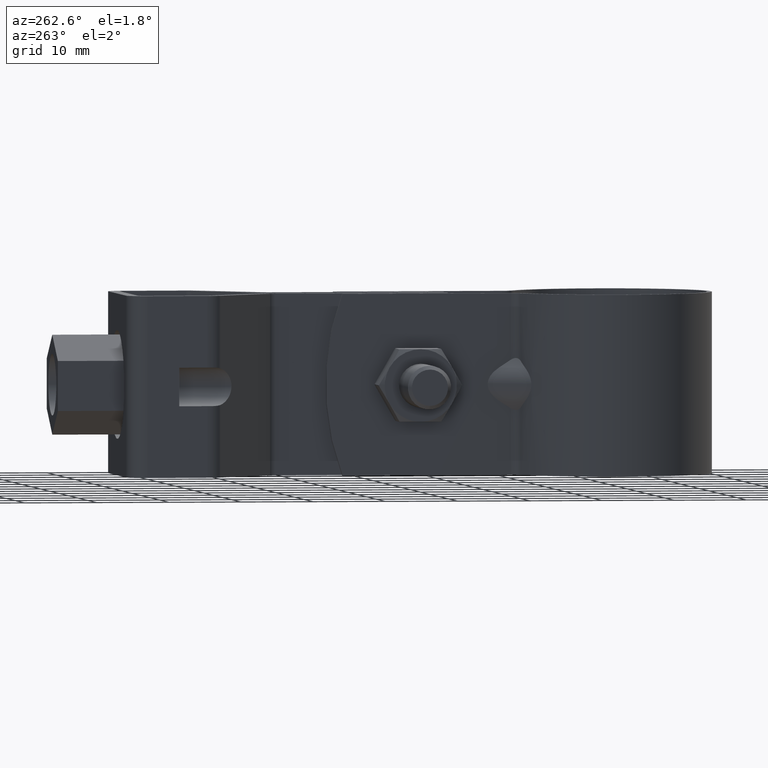
[diagram: clean part render]
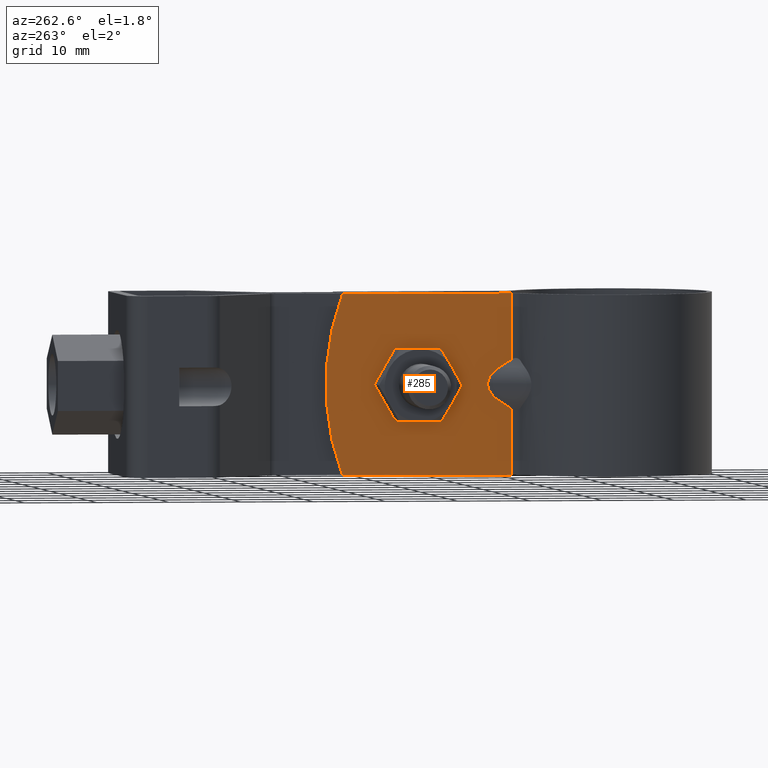
[diagram: same view with one face highlighted and labeled with its STEP entity id]
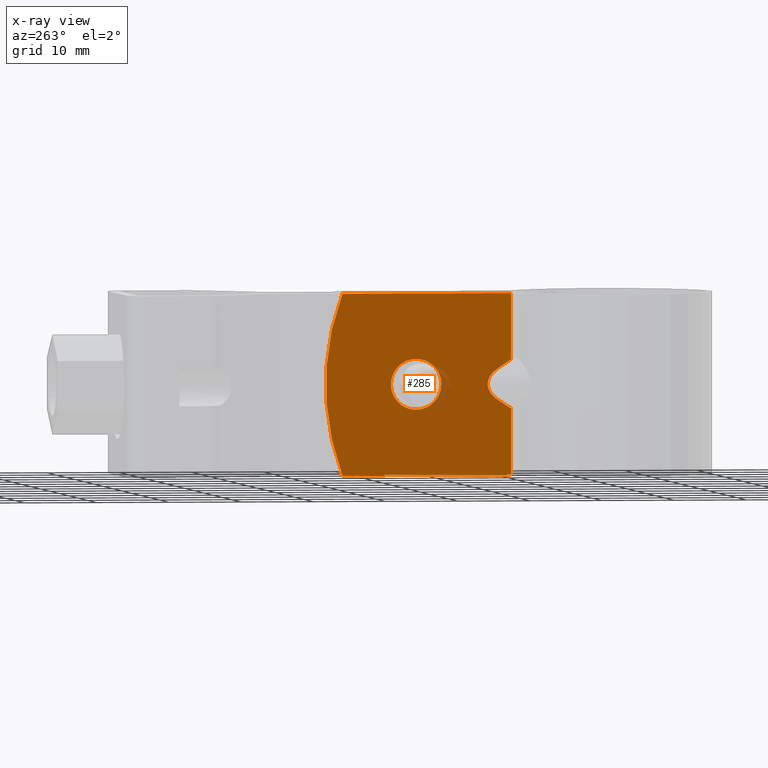
[diagram: x-ray of the same camera — body ghosted, the highlighted face saturated]
A machine part, auxiliary view. The second image highlights one B-rep face of the part: STEP entity #285.
The next image is the same camera in x-ray: the body ghosted, the highlighted face saturated — about 1% of this face is hidden behind the body in this view.
In plain terms, the highlighted planar face has unit normal (-1, 0, 0).
Its self-contained STEP definition (entity closure, byte-faithful):
#285 = ADVANCED_FACE( '', ( #428, #429 ), #430, .T. );
#428 = FACE_OUTER_BOUND( '', #700, .T. );
#429 = FACE_BOUND( '', #701, .T. );
#430 = PLANE( '', #702 );
#700 = EDGE_LOOP( '', ( #1072, #1073, #1074, #1075, #1076, #1077, #1078, #1079 ) );
#701 = EDGE_LOOP( '', ( #1080 ) );
#702 = AXIS2_PLACEMENT_3D( '', #1081, #1082, #1083 );
#1072 = ORIENTED_EDGE( '', *, *, #1971, .F. );
#1073 = ORIENTED_EDGE( '', *, *, #2001, .T. );
#1074 = ORIENTED_EDGE( '', *, *, #2002, .F. );
#1075 = ORIENTED_EDGE( '', *, *, #1995, .T. );
#1076 = ORIENTED_EDGE( '', *, *, #1943, .T. );
#1077 = ORIENTED_EDGE( '', *, *, #2003, .T. );
#1078 = ORIENTED_EDGE( '', *, *, #1968, .F. );
#1079 = ORIENTED_EDGE( '', *, *, #1966, .F. );
#1080 = ORIENTED_EDGE( '', *, *, #1991, .T. );
#1081 = CARTESIAN_POINT( '', ( -5.10000000000000, 39.8339393796293, -12.5000000000000 ) );
#1082 = DIRECTION( '', ( -1.00000000000000, 6.06692130572647E-017, 0.000000000000000 ) );
#1083 = DIRECTION( '', ( -6.06692130572647E-017, -1.00000000000000, 0.000000000000000 ) );
#1943 = EDGE_CURVE( '', #2270, #2268, #2271, .T. );
#1966 = EDGE_CURVE( '', #2309, #2311, #2312, .T. );
#1968 = EDGE_CURVE( '', #2311, #2314, #2315, .T. );
#1971 = EDGE_CURVE( '', #2317, #2309, #2319, .T. );
#1991 = EDGE_CURVE( '', #2353, #2353, #2354, .F. );
#1995 = EDGE_CURVE( '', #2361, #2270, #2362, .T. );
#2001 = EDGE_CURVE( '', #2317, #2371, #2372, .T. );
#2002 = EDGE_CURVE( '', #2361, #2371, #2373, .T. );
#2003 = EDGE_CURVE( '', #2268, #2314, #2374, .T. );
#2268 = VERTEX_POINT( '', #2804 );
#2270 = VERTEX_POINT( '', #2806 );
#2271 = LINE( '', #2807, #2808 );
#2309 = VERTEX_POINT( '', #2890 );
#2311 = VERTEX_POINT( '', #2893 );
#2312 = ELLIPSE( '', #2894, 8.81075705834106, 4.00000000000000 );
#2314 = VERTEX_POINT( '', #2897 );
#2315 = LINE( '', #2898, #2899 );
#2317 = VERTEX_POINT( '', #2901 );
#2319 = LINE( '', #2903, #2904 );
#2353 = VERTEX_POINT( '', #2980 );
#2354 = CIRCLE( '', #2981, 3.50000000000000 );
#2361 = VERTEX_POINT( '', #2988 );
#2362 = CIRCLE( '', #2989, 35.0000000000000 );
#2371 = VERTEX_POINT( '', #3000 );
#2372 = LINE( '', #3001, #3002 );
#2373 = LINE( '', #3003, #3004 );
#2374 = LINE( '', #3005, #3006 );
#2804 = CARTESIAN_POINT( '', ( -5.10000000000000, 14.1813257490264, -12.5000000000000 ) );
#2806 = CARTESIAN_POINT( '', ( -5.10000000000000, 37.5256814561844, -12.5000000000000 ) );
#2807 = CARTESIAN_POINT( '', ( -5.10000000000000, 39.8339393796293, -12.5000000000000 ) );
#2808 = VECTOR( '', #3692, 1000.00000000000 );
#2890 = CARTESIAN_POINT( '', ( -5.10000000000000, 15.8271868338750, 2.29430574540416 ) );
#2893 = CARTESIAN_POINT( '', ( -5.10000000000000, 15.8271868338749, -2.29430574540421 ) );
#2894 = AXIS2_PLACEMENT_3D( '', #3731, #3732, #3733 );
#2897 = CARTESIAN_POINT( '', ( -5.10000000000000, 14.1813257490264, -3.36142550010249 ) );
#2898 = CARTESIAN_POINT( '', ( -5.10000000000000, 28.0702174581589, 5.64365448515329 ) );
#2899 = VECTOR( '', #3735, 1000.00000000000 );
#2901 = CARTESIAN_POINT( '', ( -5.10000000000000, 14.1813257490264, 3.36142550010246 ) );
#2903 = CARTESIAN_POINT( '', ( -5.10000000000000, 39.4820675674343, -13.0427058397120 ) );
#2904 = VECTOR( '', #3742, 1000.00000000000 );
#2980 = CARTESIAN_POINT( '', ( -5.10000000000000, 23.8339393796293, -8.67361737988404E-016 ) );
#2981 = AXIS2_PLACEMENT_3D( '', #3778, #3779, #3780 );
#2988 = CARTESIAN_POINT( '', ( -5.10000000000000, 37.5256814561844, 12.5000000000000 ) );
#2989 = AXIS2_PLACEMENT_3D( '', #3790, #3791, #3792 );
#3000 = CARTESIAN_POINT( '', ( -5.10000000000000, 14.1813257490264, 12.5000000000000 ) );
#3001 = CARTESIAN_POINT( '', ( -5.10000000000000, 14.1813257490264, -12.5000000000000 ) );
#3002 = VECTOR( '', #3804, 1000.00000000000 );
#3003 = CARTESIAN_POINT( '', ( -5.10000000000000, 39.8339393796293, 12.5000000000000 ) );
#3004 = VECTOR( '', #3805, 1000.00000000000 );
#3005 = CARTESIAN_POINT( '', ( -5.10000000000000, 14.1813257490264, -12.5000000000000 ) );
#3006 = VECTOR( '', #3806, 1000.00000000000 );
#3692 = DIRECTION( '', ( -6.06692130572647E-017, -1.00000000000000, 0.000000000000000 ) );
#3731 = CARTESIAN_POINT( '', ( -5.10000000000000, 8.60983717780126, -3.07505438184128E-014 ) );
#3732 = DIRECTION( '', ( -1.00000000000000, 6.06692130572647E-017, 0.000000000000000 ) );
#3733 = DIRECTION( '', ( 6.06692130572647E-017, 1.00000000000000, 9.96825944130074E-016 ) );
#3735 = DIRECTION( '', ( -5.09056978337516E-017, -0.839069690679893, -0.544023946331730 ) );
#3742 = DIRECTION( '', ( 5.09056978337516E-017, 0.839069690679893, -0.544023946331730 ) );
#3778 = CARTESIAN_POINT( '', ( -5.10000000000000, 27.3339393796293, -8.67361737988404E-016 ) );
#3779 = DIRECTION( '', ( -1.00000000000000, 6.06692130572647E-017, 0.000000000000000 ) );
#3780 = DIRECTION( '', ( -6.06692130572647E-017, -1.00000000000000, 0.000000000000000 ) );
#3790 = CARTESIAN_POINT( '', ( -5.10000000000000, 4.83393937962930, -1.38777878078145E-014 ) );
#3791 = DIRECTION( '', ( -1.00000000000000, 6.06692130572647E-017, 0.000000000000000 ) );
#3792 = DIRECTION( '', ( -6.06692130572647E-017, -1.00000000000000, 0.000000000000000 ) );
#3804 = DIRECTION( '', ( 0.000000000000000, 0.000000000000000, 1.00000000000000 ) );
#3805 = DIRECTION( '', ( -6.06692130572647E-017, -1.00000000000000, 0.000000000000000 ) );
#3806 = DIRECTION( '', ( 0.000000000000000, 0.000000000000000, 1.00000000000000 ) );